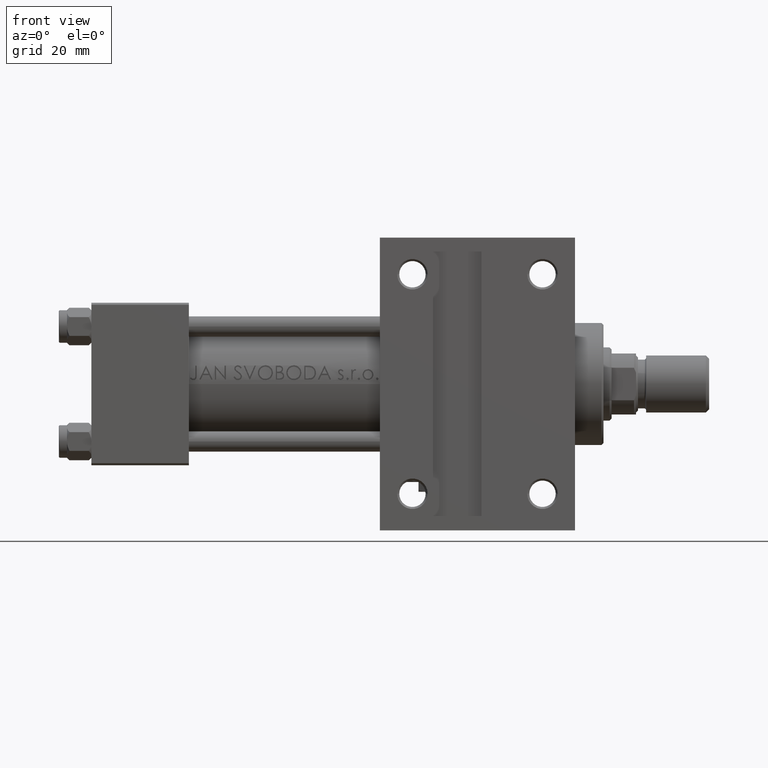
[diagram: clean part render]
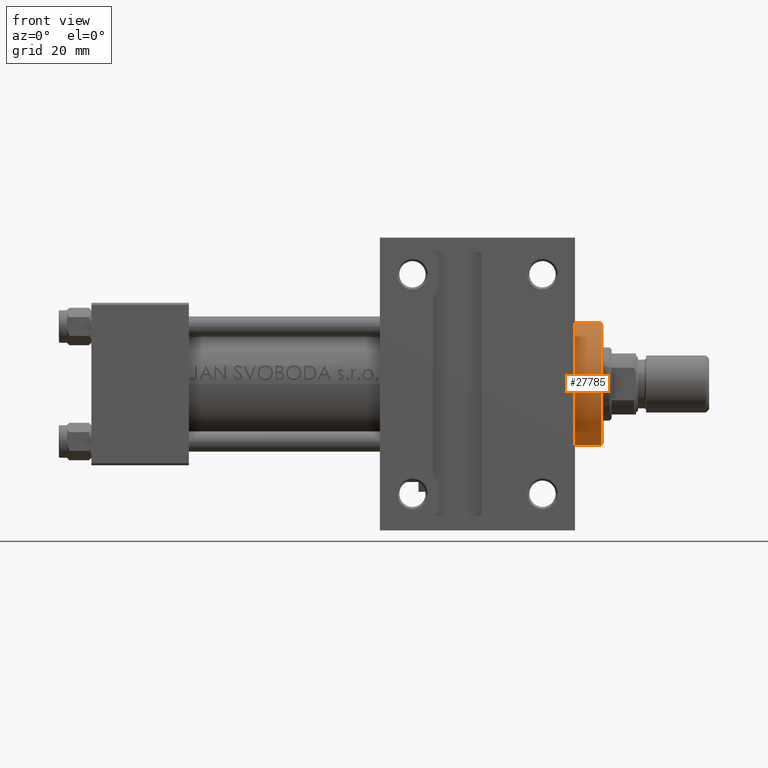
[diagram: same view with one face highlighted and labeled with its STEP entity id]
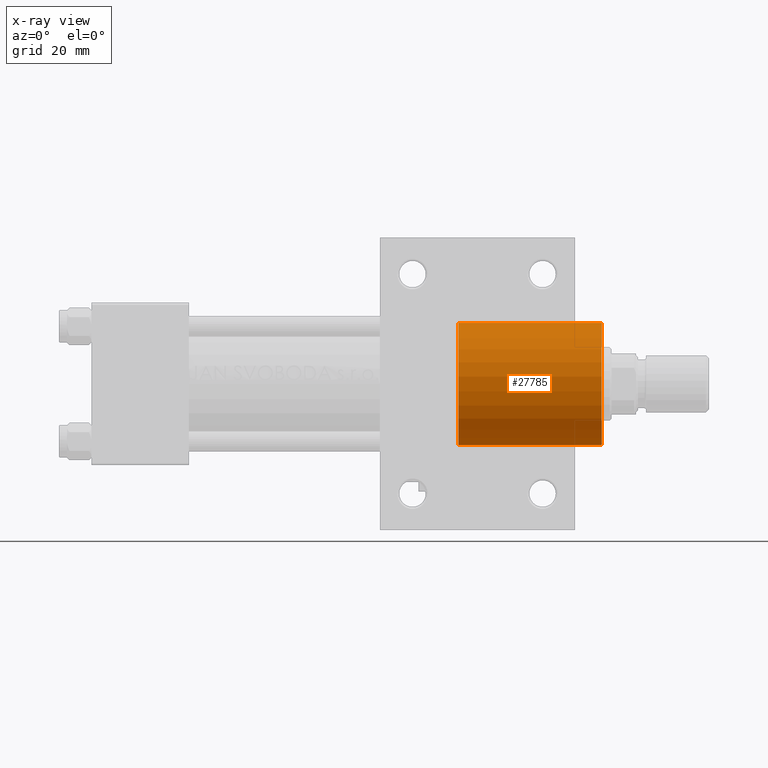
[diagram: x-ray of the same camera — body ghosted, the highlighted face saturated]
A machine part, front view. The second image highlights one B-rep face of the part: STEP entity #27785.
The next image is the same camera in x-ray: the body ghosted, the highlighted face saturated — about 0% of this face is hidden behind the body in this view.
In plain terms, the highlighted cylindrical surface (partial cylindrical patch) has radius 15 mm, axis along (-1, 0, 0).
Its self-contained STEP definition (entity closure, byte-faithful):
#42 = EDGE_CURVE ( 'NONE', #28728, #45799, #39702, .T. ) ;
#1128 = DIRECTION ( 'NONE',  ( 0.000000000000000000, 0.000000000000000000, 1.000000000000000000 ) ) ;
#3090 = CARTESIAN_POINT ( 'NONE',  ( -15.00000000000000000, 0.000000000000000000, 0.000000000000000000 ) ) ;
#4327 = EDGE_CURVE ( 'NONE', #17856, #28728, #8166, .T. ) ;
#5750 = AXIS2_PLACEMENT_3D ( 'NONE', #7512, #14820, #42493 ) ;
#7512 = CARTESIAN_POINT ( 'NONE',  ( 0.000000000000000000, 0.000000000000000000, 35.19999999999999574 ) ) ;
#8166 = LINE ( 'NONE', #19751, #39036 ) ;
#11649 = DIRECTION ( 'NONE',  ( -0.000000000000000000, -0.000000000000000000, -1.000000000000000000 ) ) ;
#12459 = CARTESIAN_POINT ( 'NONE',  ( 0.000000000000000000, 0.000000000000000000, 0.000000000000000000 ) ) ;
#13589 = CARTESIAN_POINT ( 'NONE',  ( 15.00000000000000000, 1.836970198721029589E-15, 0.000000000000000000 ) ) ;
#14820 = DIRECTION ( 'NONE',  ( 0.000000000000000000, 0.000000000000000000, -1.000000000000000000 ) ) ;
#17856 = VERTEX_POINT ( 'NONE', #21017 ) ;
#18954 = CARTESIAN_POINT ( 'NONE',  ( -15.00000000000000000, 0.000000000000000000, 28.69999999999999929 ) ) ;
#19751 = CARTESIAN_POINT ( 'NONE',  ( 15.00000000000000000, 1.836970198721029589E-15, 28.69999999999999929 ) ) ;
#19909 = DIRECTION ( 'NONE',  ( -1.000000000000000000, 0.000000000000000000, 0.000000000000000000 ) ) ;
#21017 = CARTESIAN_POINT ( 'NONE',  ( 15.00000000000000000, 1.836970198721029589E-15, 35.19999999999999574 ) ) ;
#21977 = ORIENTED_EDGE ( 'NONE', *, *, #35587, .F. ) ;
#25007 = CIRCLE ( 'NONE', #5750, 15.00000000000000000 ) ;
#27785 = ADVANCED_FACE ( 'NONE', ( #34018 ), #30233, .T. ) ;
#28655 = AXIS2_PLACEMENT_3D ( 'NONE', #45582, #39270, #19909 ) ;
#28728 = VERTEX_POINT ( 'NONE', #13589 ) ;
#30233 = CYLINDRICAL_SURFACE ( 'NONE', #28655, 15.00000000000000000 ) ;
#31629 = ORIENTED_EDGE ( 'NONE', *, *, #42853, .T. ) ;
#31831 = DIRECTION ( 'NONE',  ( 1.000000000000000000, 0.000000000000000000, 0.000000000000000000 ) ) ;
#34018 = FACE_OUTER_BOUND ( 'NONE', #34313, .T. ) ;
#34313 = EDGE_LOOP ( 'NONE', ( #31629, #38864, #39668, #21977 ) ) ;
#34545 = LINE ( 'NONE', #18954, #47618 ) ;
#35091 = DIRECTION ( 'NONE',  ( -0.000000000000000000, -0.000000000000000000, -1.000000000000000000 ) ) ;
#35587 = EDGE_CURVE ( 'NONE', #44430, #45799, #34545, .T. ) ;
#37614 = CARTESIAN_POINT ( 'NONE',  ( -15.00000000000000000, 0.000000000000000000, 35.19999999999999574 ) ) ;
#38864 = ORIENTED_EDGE ( 'NONE', *, *, #4327, .T. ) ;
#39036 = VECTOR ( 'NONE', #35091, 1000.000000000000000 ) ;
#39270 = DIRECTION ( 'NONE',  ( -0.000000000000000000, -0.000000000000000000, -1.000000000000000000 ) ) ;
#39668 = ORIENTED_EDGE ( 'NONE', *, *, #42, .T. ) ;
#39702 = CIRCLE ( 'NONE', #48546, 15.00000000000000000 ) ;
#42493 = DIRECTION ( 'NONE',  ( 1.000000000000000000, 0.000000000000000000, 0.000000000000000000 ) ) ;
#42853 = EDGE_CURVE ( 'NONE', #44430, #17856, #25007, .T. ) ;
#44430 = VERTEX_POINT ( 'NONE', #37614 ) ;
#45582 = CARTESIAN_POINT ( 'NONE',  ( 0.000000000000000000, 0.000000000000000000, 28.69999999999999929 ) ) ;
#45799 = VERTEX_POINT ( 'NONE', #3090 ) ;
#47618 = VECTOR ( 'NONE', #11649, 1000.000000000000000 ) ;
#48546 = AXIS2_PLACEMENT_3D ( 'NONE', #12459, #1128, #31831 ) ;